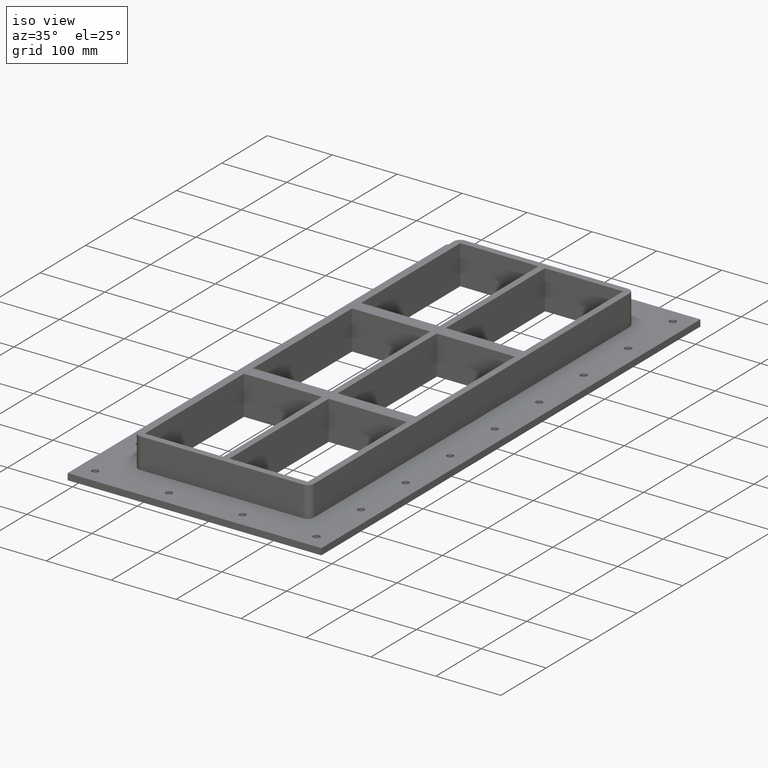
[diagram: clean part render]
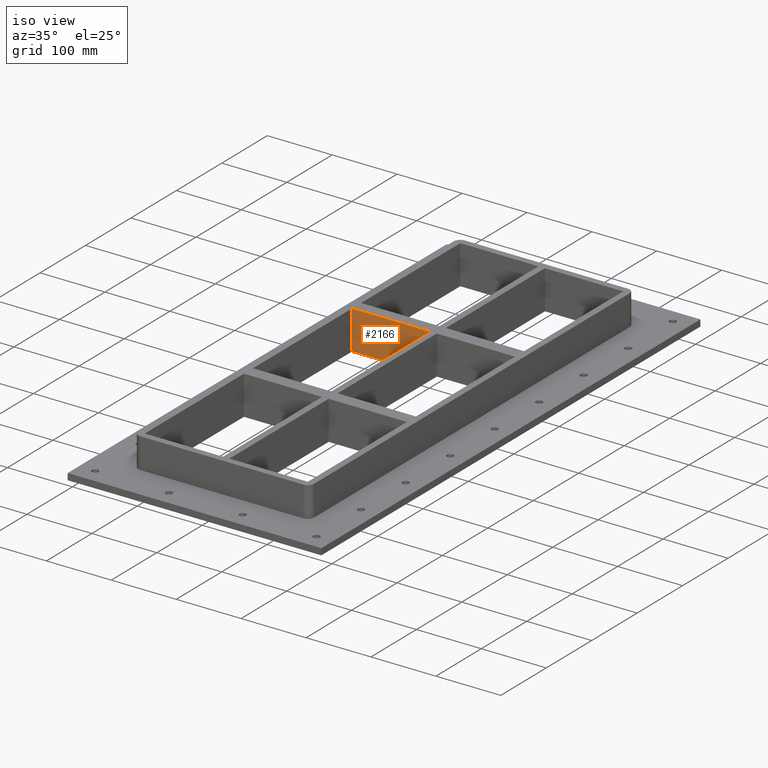
[diagram: same view with one face highlighted and labeled with its STEP entity id]
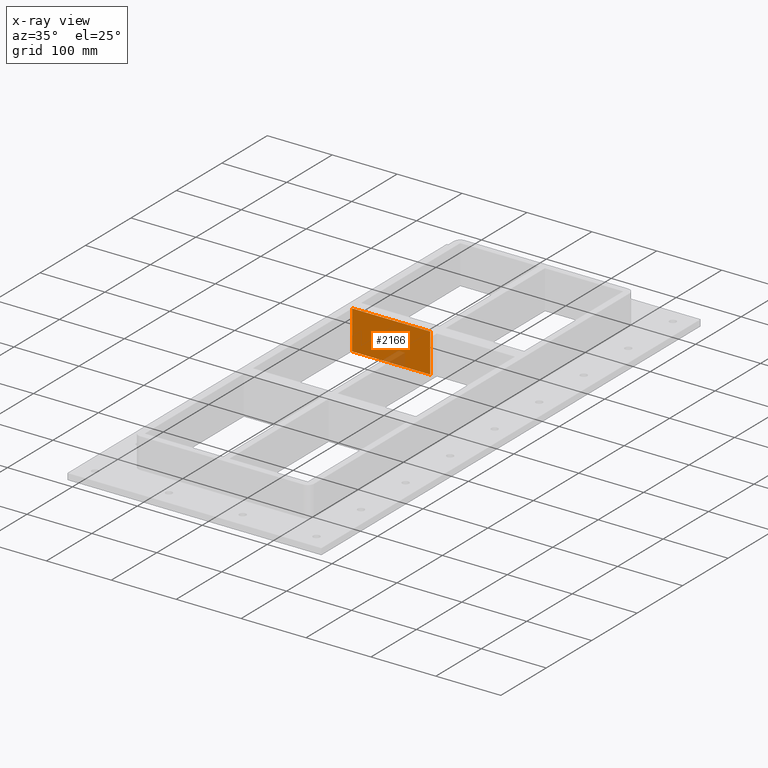
[diagram: x-ray of the same camera — body ghosted, the highlighted face saturated]
A machine part, iso view. The second image highlights one B-rep face of the part: STEP entity #2166.
The next image is the same camera in x-ray: the body ghosted, the highlighted face saturated — about 6% of this face is hidden behind the body in this view.
In plain terms, the highlighted planar face has unit normal (0, 1, 0).
Its self-contained STEP definition (entity closure, byte-faithful):
#1510=CARTESIAN_POINT('',(-125.5,109.00000000000013,-30.0));
#1511=VERTEX_POINT('',#1510);
#1528=CARTESIAN_POINT('',(-4.999999999999982,109.00000000000013,-30.0));
#1529=VERTEX_POINT('',#1528);
#1536=CARTESIAN_POINT('',(-4.999999999999986,109.00000000000013,-30.0));
#1537=DIRECTION('',(-1.0,0.0,0.0));
#1538=VECTOR('',#1537,120.50000000000001);
#1539=LINE('',#1536,#1538);
#1540=EDGE_CURVE('',#1529,#1511,#1539,.T.);
#2077=CARTESIAN_POINT('',(-125.5,109.00000000000013,30.0));
#2078=VERTEX_POINT('',#2077);
#2079=CARTESIAN_POINT('',(-125.5,109.00000000000013,30.0));
#2080=DIRECTION('',(0.0,0.0,-1.0));
#2081=VECTOR('',#2080,60.0);
#2082=LINE('',#2079,#2081);
#2083=EDGE_CURVE('',#2078,#1511,#2082,.T.);
#2133=CARTESIAN_POINT('',(-4.999999999999982,109.00000000000013,30.0));
#2134=VERTEX_POINT('',#2133);
#2141=CARTESIAN_POINT('',(-4.999999999999982,109.00000000000013,30.0));
#2142=DIRECTION('',(0.0,0.0,-1.0));
#2143=VECTOR('',#2142,60.0);
#2144=LINE('',#2141,#2143);
#2145=EDGE_CURVE('',#2134,#1529,#2144,.T.);
#2150=CARTESIAN_POINT('',(-125.5,109.00000000000013,30.0));
#2151=DIRECTION('',(0.0,1.0,0.0));
#2152=DIRECTION('',(1.0,0.0,0.0));
#2153=AXIS2_PLACEMENT_3D('',#2150,#2151,#2152);
#2154=PLANE('',#2153);
#2155=ORIENTED_EDGE('',*,*,#1540,.F.);
#2156=ORIENTED_EDGE('',*,*,#2145,.F.);
#2157=CARTESIAN_POINT('',(-125.5,109.00000000000013,30.0));
#2158=DIRECTION('',(1.0,0.0,0.0));
#2159=VECTOR('',#2158,120.50000000000001);
#2160=LINE('',#2157,#2159);
#2161=EDGE_CURVE('',#2078,#2134,#2160,.T.);
#2162=ORIENTED_EDGE('',*,*,#2161,.F.);
#2163=ORIENTED_EDGE('',*,*,#2083,.T.);
#2164=EDGE_LOOP('',(#2155,#2156,#2162,#2163));
#2165=FACE_OUTER_BOUND('',#2164,.T.);
#2166=ADVANCED_FACE('',(#2165),#2154,.F.);